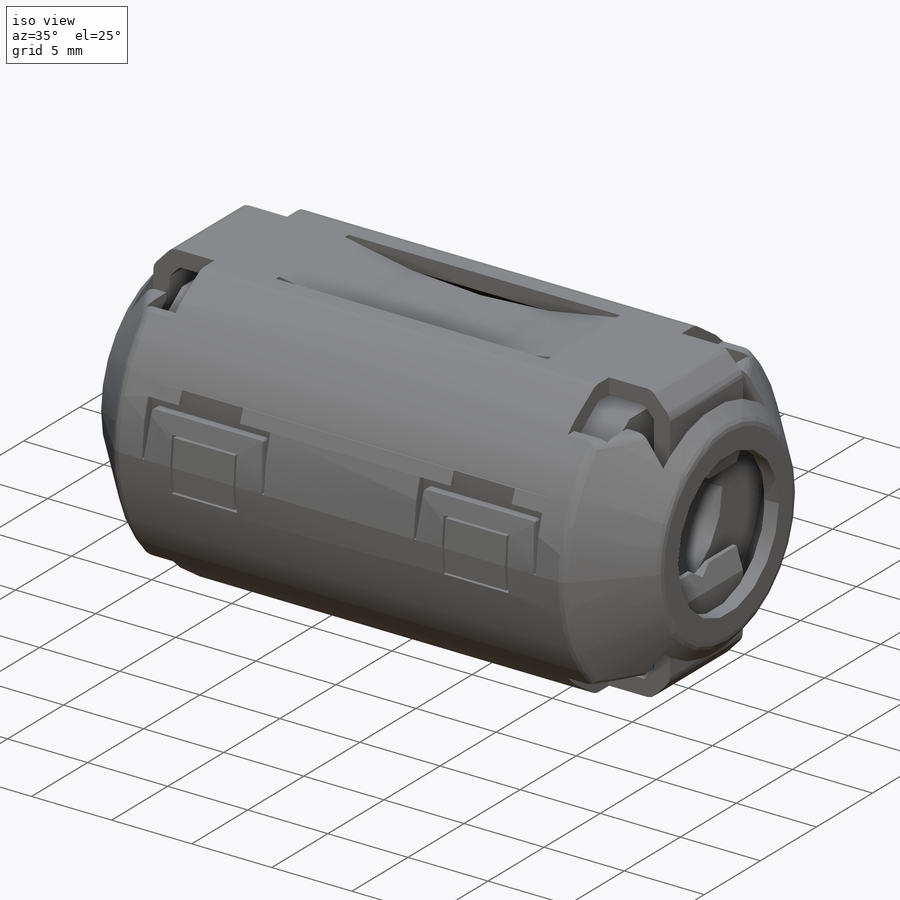
[diagram: iso view]
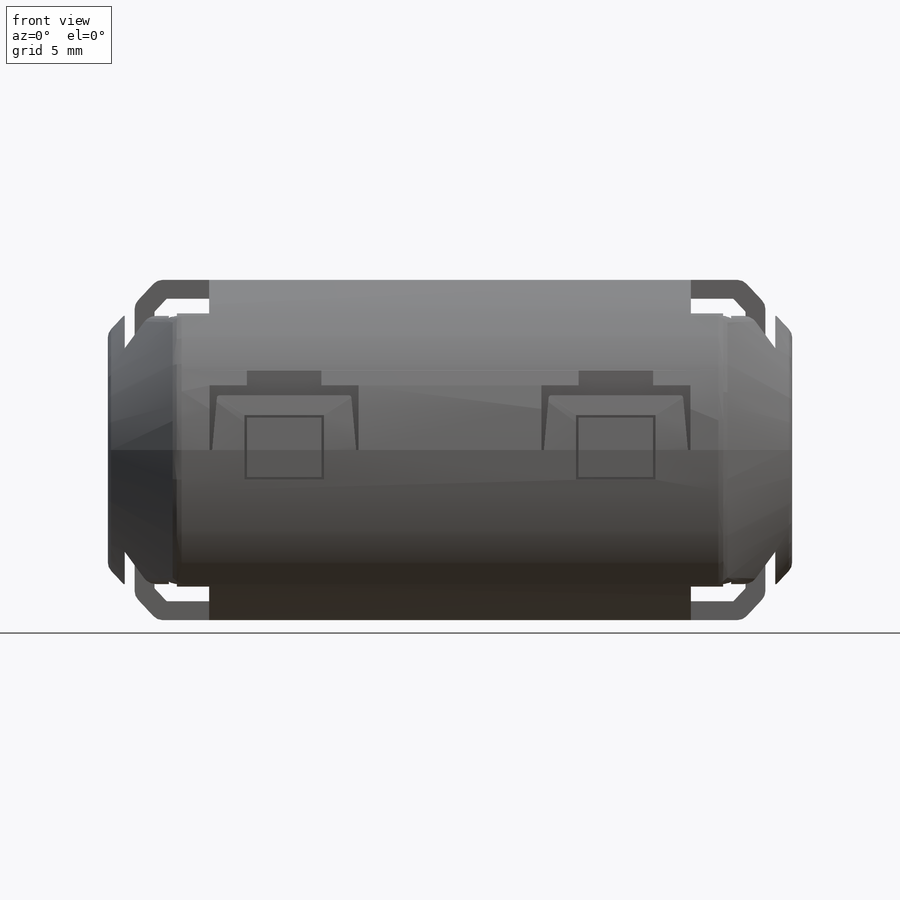
[diagram: front view]
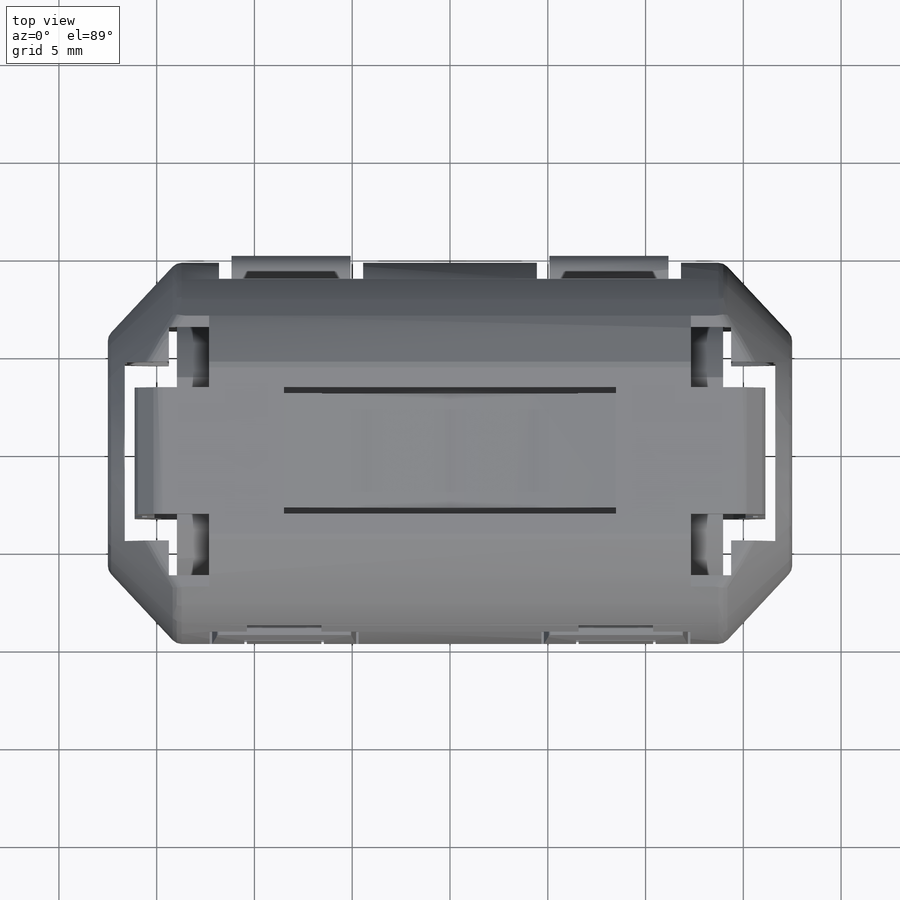
[diagram: top view]
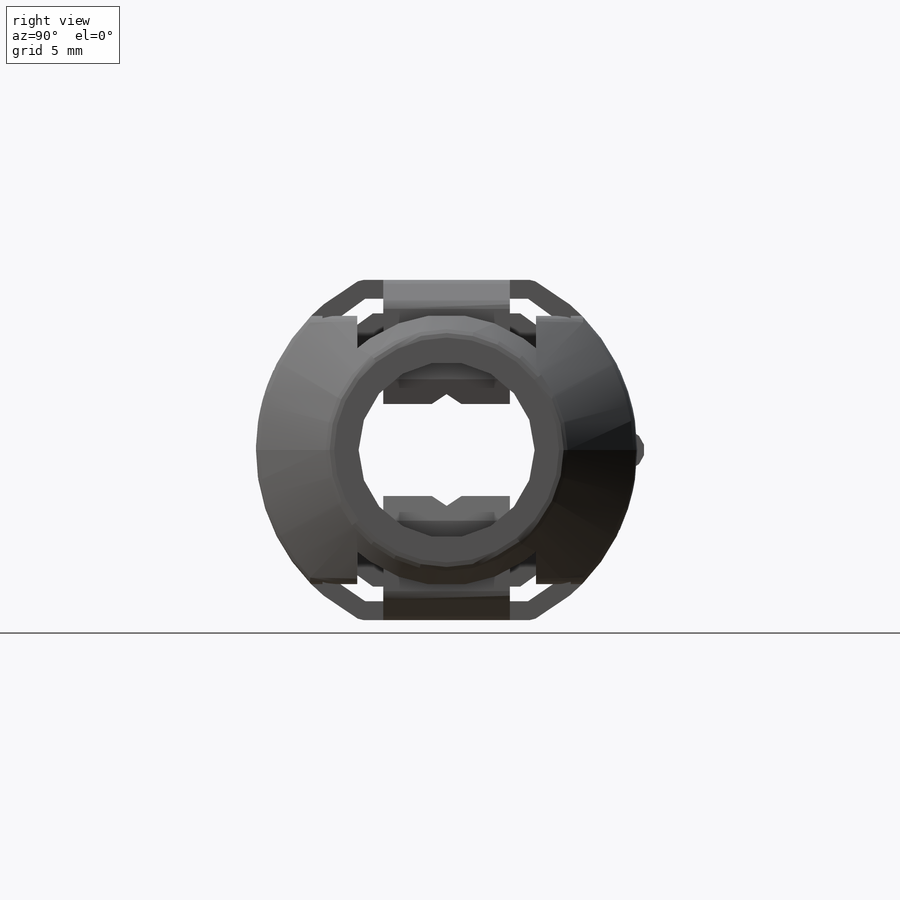
[diagram: right view]
SOLIDWORKS PART (.sldprt)
format: sldprt  version: not decoded by parser v0  size: 959,488 bytes
history: native  units: mm
features: sketch x12, cut_extrude x7, extrude x4, plane x2, fillet x2, material x1, revolve x1, shell x1, mirror x1 (+11 scaffold rows collapsed)
feature tree (42):
  scaffold x11  (default folders/planes/origin — collapsed)
  material  "Plain Carbon Steel"
  sketch  "Sketch1"  dims[D1=35.0mm D2=19.5mm D3=28.0mm D4=12.0mm]
  revolve  "Revolve1"  Angle=360deg
  sketch  "Sketch2"  dims[D1=9.0mm D2=17.4mm]
  cut_extrude  "Cut-Extrude1"  [1 undecoded]
  shell  "Shell2"  Thickness=0.9652mm
  sketch  "Sketch3"  dims[D1=9.0mm]
  cut_extrude  "Cut-Extrude2"  [1 undecoded]
  sketch  "Sketch4"  dims[D1=24.638mm D2=13.716mm]
  cut_extrude  "Cut-Extrude3"  [1 undecoded]
  sketch  "Sketch5"  dims[D1=12.7mm D2=2.0574mm D3=9.144mm D4=4.318mm D5=16.9672mm D6=6.477mm]
  cut_extrude  "Cut-Extrude4"  [1 undecoded]
  sketch  "Sketch6"  dims[D1=6.35mm D2=0.254mm D3=32.258mm D4=1.016mm D5=1.016mm D6=1.27mm]
  extrude  "Boss-Extrude1"  Depth=6.477mm
  sketch  "Sketch7"  dims[D1=1.016mm]
  extrude  "Boss-Extrude2"  Depth=5.842mm
  sketch  "Sketch8"  dims[D1=0.508mm D2=1.524mm]
  cut_extrude  "Cut-Extrude5"  [1 undecoded]
  sketch  "Sketch9"  dims[D1=0.889mm D2=8.89mm D3=7.366mm]
  cut_extrude  "Cut-Extrude6"  [1 undecoded]
  sketch  "Sketch14"  dims[c1.D1=15.875mm c1.D3=~6.690782mm c1.D2=13.97mm c2.D3=3.429mm]
  extrude  "Boss-Extrude5"  Depth=27.94mm
  plane  "Plane1"
  sketch  "Sketch10"  dims[D1=1.27mm D2=2.032mm]
  extrude  "Boss-Extrude3"  Depth=6.096mm
  mirror  "Mirror3"
  plane  "Plane2"
  sketch  "Sketch11"  dims[D11=0.127mm D1=7.62mm D2=3.81mm D3=3.302mm D4=1.27mm D5=0.127mm D6=0.508mm D7=1.016mm D8=4.064mm D9=3.302mm D10=6.858mm D13=7.112mm D12=0.127mm]
  cut_extrude  "Cut-Extrude9"  Depth=0.889mm
  fillet  "Fillet1"  Radius=0.635mm
  fillet  "Fillet2"  Radius=0.635mm
decode coverage: 21 of 28 modeling features carry decoded parameters
note: ~ marks probable driven/reference dimensions
note: 6 parameter values undecoded
summary: no parameter record found for 6 features
note: suppression state not decoded; provenance and decode notes live in map.json
